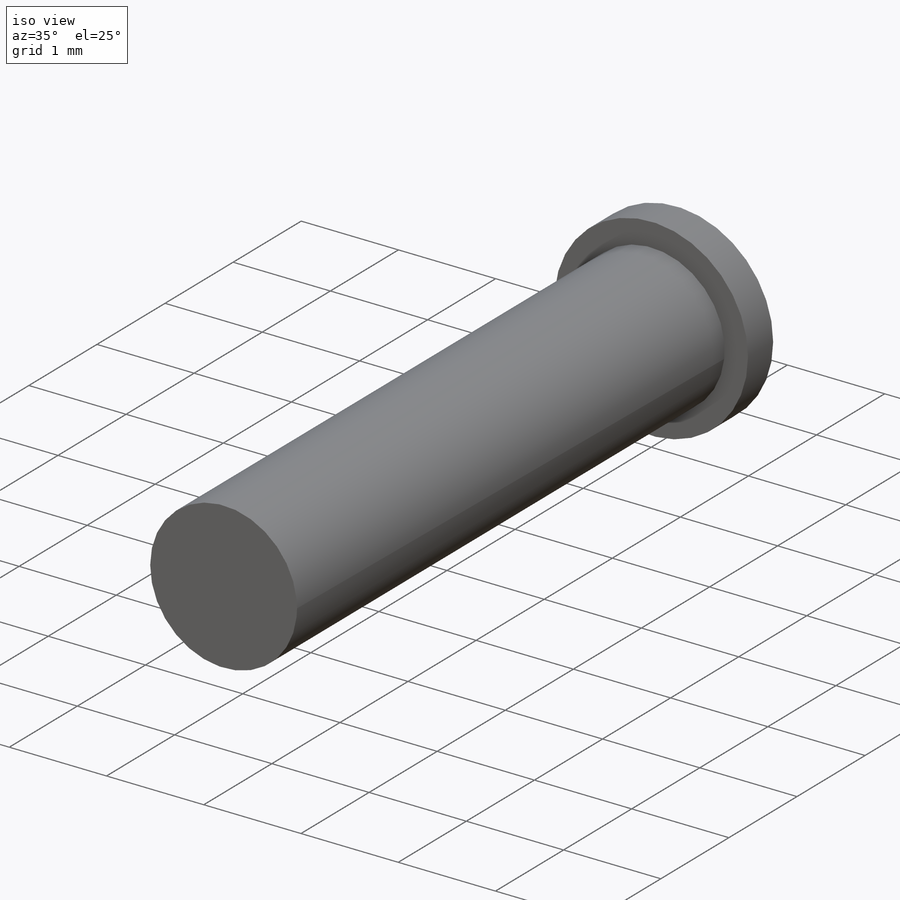
[diagram: iso view]
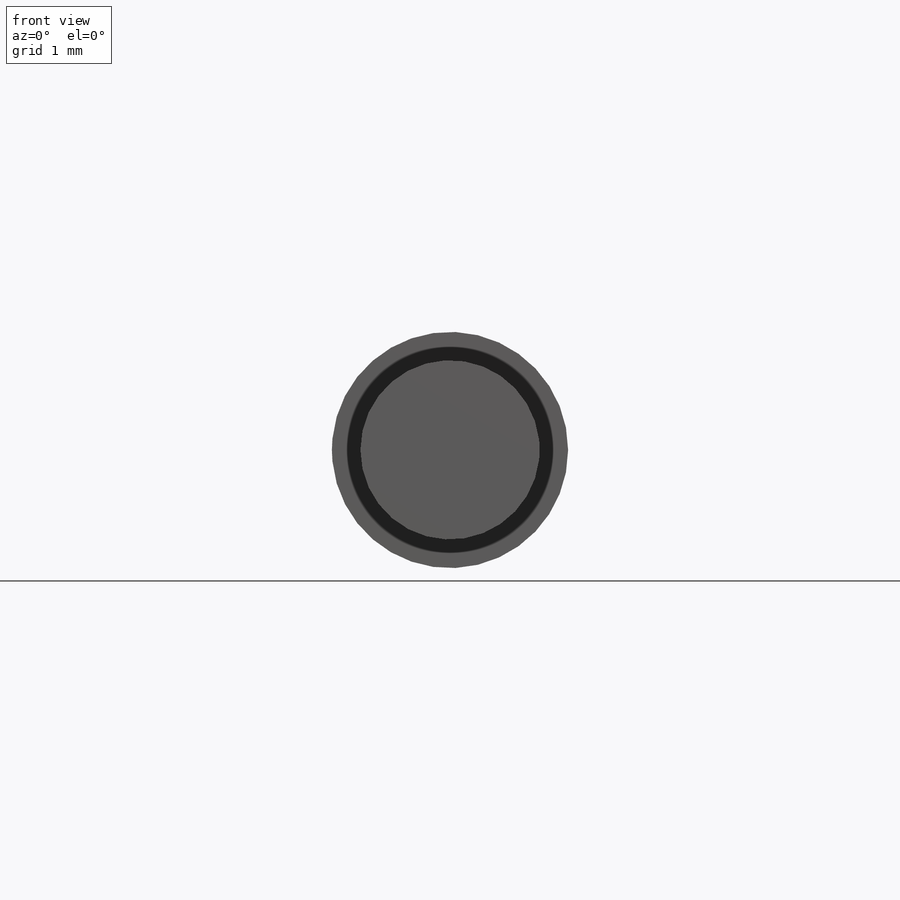
[diagram: front view]
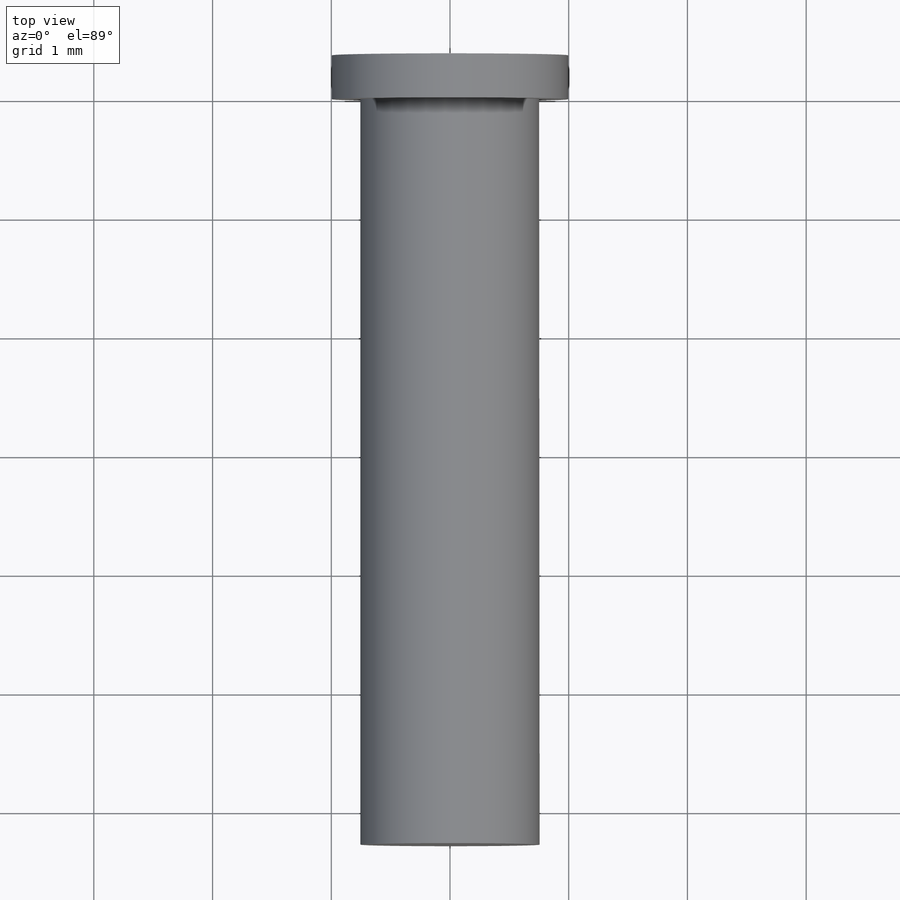
[diagram: top view]
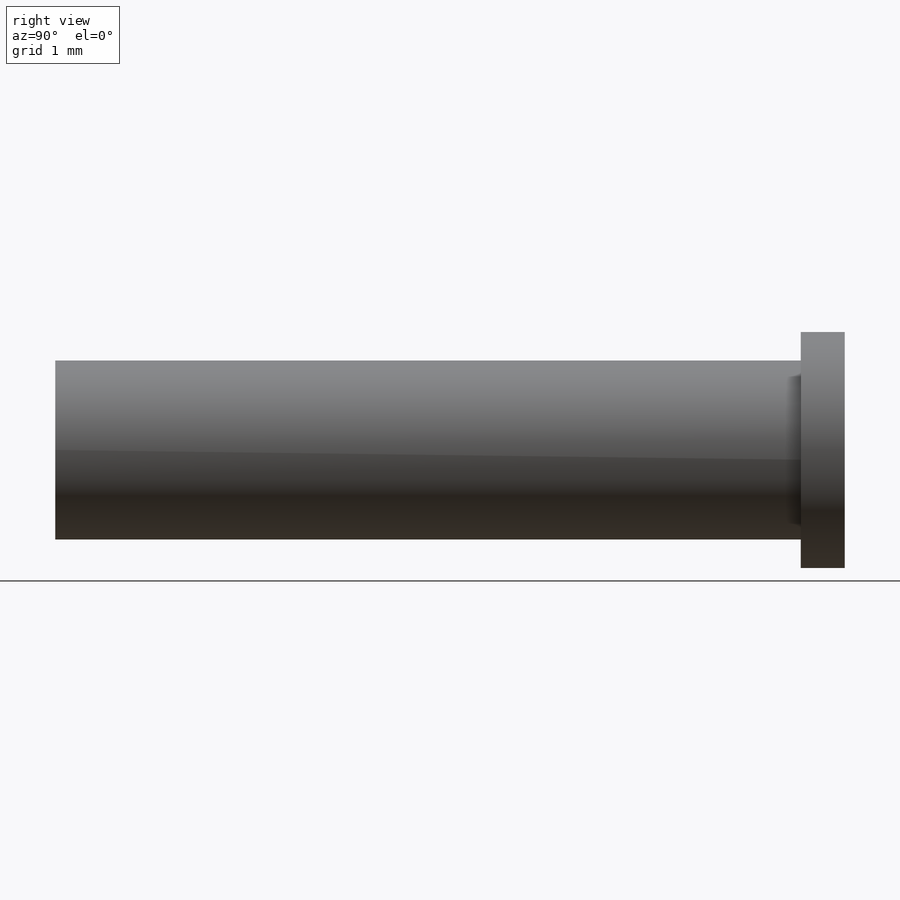
[diagram: right view]
SOLIDWORKS PART (.sldprt)
format: sldprt  version: not decoded by parser v0  size: 208,384 bytes
history: native  units: mm
features: sketch x3, extrude x2, material x1, cut_extrude x1 (+11 scaffold rows collapsed)
feature tree (18):
  scaffold x11  (default folders/planes/origin — collapsed)
  material  "Material <not specified>"
  sketch  "Sketch1"  dims[D1=0.7mm]
  extrude  "Boss-Extrude1"  Depth=6.28mm
  sketch  "Sketch2"  dims[D1=0.925mm]
  extrude  "Boss-Extrude2"  Depth=0.37mm
  sketch  "Sketch3"  dims[D1=0.47mm]
  cut_extrude  "Cut-Extrude1"  Depth=6mm
decode coverage: 6 of 6 modeling features carry decoded parameters
note: suppression state not decoded; provenance and decode notes live in map.json
